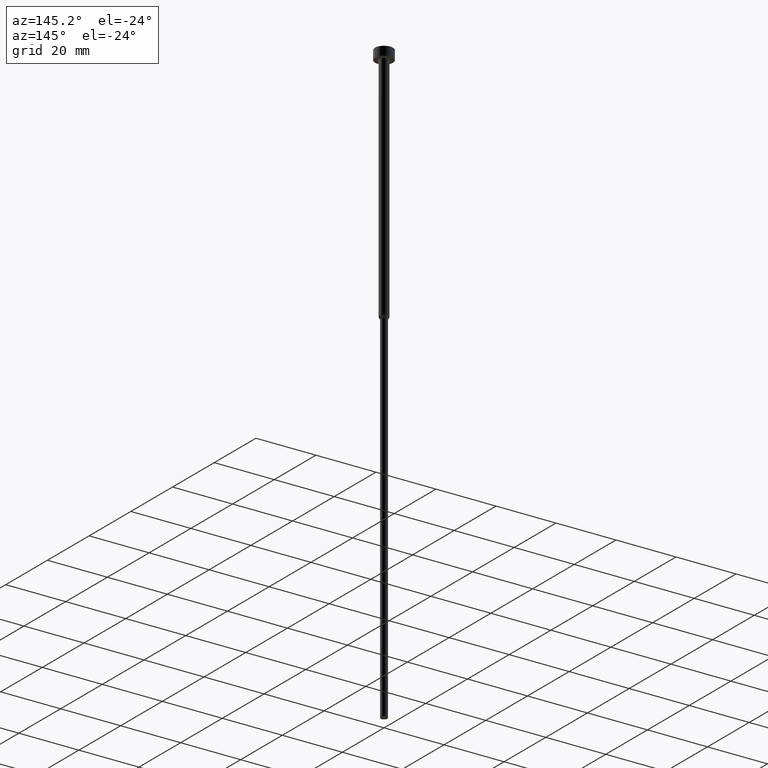
[diagram: clean part render]
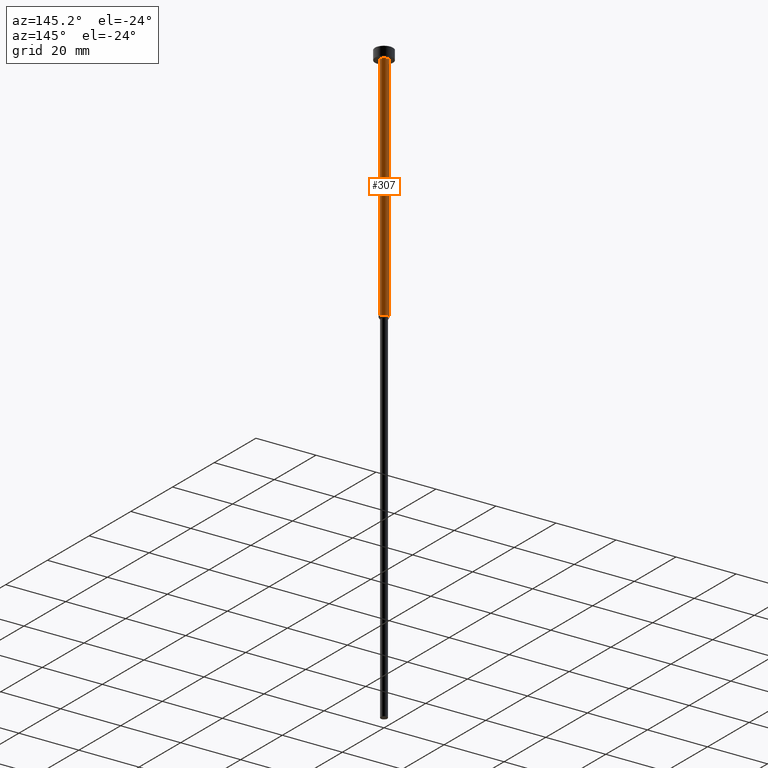
[diagram: same view with one face highlighted and labeled with its STEP entity id]
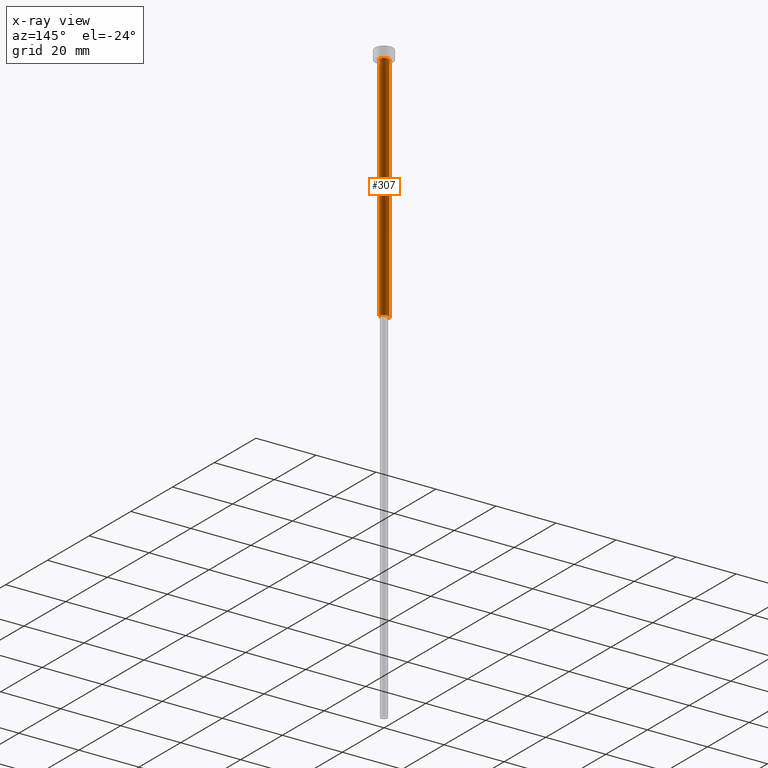
[diagram: x-ray of the same camera — body ghosted, the highlighted face saturated]
A machine part, auxiliary view. The second image highlights one B-rep face of the part: STEP entity #307.
The next image is the same camera in x-ray: the body ghosted, the highlighted face saturated — about 0% of this face is hidden behind the body in this view.
In plain terms, the highlighted cylindrical surface (edge-blend (fillet) strip) has radius 1.5 mm, axis along (-0, -0, 1).
Its self-contained STEP definition (entity closure, byte-faithful):
#6 = DIRECTION ( 'NONE',  ( -0.000000000000000000, -0.000000000000000000, 1.000000000000000000 ) ) ;
#14 = EDGE_LOOP ( 'NONE', ( #89, #152, #335, #333 ) ) ;
#30 = VECTOR ( 'NONE', #132, 1000.000000000000000 ) ;
#34 = CYLINDRICAL_SURFACE ( 'NONE', #286, 1.500000000000000000 ) ;
#36 = CARTESIAN_POINT ( 'NONE',  ( 0.000000000000000000, 0.000000000000000000, -80.00000000000000000 ) ) ;
#37 = FACE_OUTER_BOUND ( 'NONE', #14, .T. ) ;
#41 = LINE ( 'NONE', #341, #210 ) ;
#66 = AXIS2_PLACEMENT_3D ( 'NONE', #316, #68, #100 ) ;
#68 = DIRECTION ( 'NONE',  ( -0.000000000000000000, -0.000000000000000000, 1.000000000000000000 ) ) ;
#72 = EDGE_CURVE ( 'NONE', #294, #347, #165, .T. ) ;
#89 = ORIENTED_EDGE ( 'NONE', *, *, #325, .T. ) ;
#90 = CARTESIAN_POINT ( 'NONE',  ( -1.500000000000000000, 1.836970198721029934E-16, -3.000000000000000888 ) ) ;
#93 = AXIS2_PLACEMENT_3D ( 'NONE', #36, #6, #201 ) ;
#94 = EDGE_CURVE ( 'NONE', #222, #347, #199, .T. ) ;
#100 = DIRECTION ( 'NONE',  ( 1.000000000000000000, 0.000000000000000000, 0.000000000000000000 ) ) ;
#109 = CARTESIAN_POINT ( 'NONE',  ( 1.500000000000000000, 0.000000000000000000, -3.000000000000000888 ) ) ;
#113 = CARTESIAN_POINT ( 'NONE',  ( 1.500000000000000000, 0.000000000000000000, -80.00000000000000000 ) ) ;
#117 = EDGE_CURVE ( 'NONE', #150, #222, #41, .T. ) ;
#132 = DIRECTION ( 'NONE',  ( -0.000000000000000000, -0.000000000000000000, 1.000000000000000000 ) ) ;
#144 = DIRECTION ( 'NONE',  ( 1.000000000000000000, 0.000000000000000000, 0.000000000000000000 ) ) ;
#150 = VERTEX_POINT ( 'NONE', #113 ) ;
#152 = ORIENTED_EDGE ( 'NONE', *, *, #72, .T. ) ;
#165 = LINE ( 'NONE', #267, #30 ) ;
#199 = CIRCLE ( 'NONE', #66, 1.500000000000000000 ) ;
#201 = DIRECTION ( 'NONE',  ( 1.000000000000000000, 0.000000000000000000, 0.000000000000000000 ) ) ;
#210 = VECTOR ( 'NONE', #330, 1000.000000000000000 ) ;
#215 = CIRCLE ( 'NONE', #93, 1.500000000000000000 ) ;
#222 = VERTEX_POINT ( 'NONE', #109 ) ;
#255 = CARTESIAN_POINT ( 'NONE',  ( 0.000000000000000000, 0.000000000000000000, 0.000000000000000000 ) ) ;
#267 = CARTESIAN_POINT ( 'NONE',  ( -1.500000000000000000, 1.836970198721029934E-16, 0.000000000000000000 ) ) ;
#280 = CARTESIAN_POINT ( 'NONE',  ( -1.500000000000000000, 1.836970198721029934E-16, -80.00000000000000000 ) ) ;
#286 = AXIS2_PLACEMENT_3D ( 'NONE', #255, #305, #144 ) ;
#294 = VERTEX_POINT ( 'NONE', #280 ) ;
#305 = DIRECTION ( 'NONE',  ( -0.000000000000000000, -0.000000000000000000, 1.000000000000000000 ) ) ;
#307 = ADVANCED_FACE ( 'NONE', ( #37 ), #34, .T. ) ;
#316 = CARTESIAN_POINT ( 'NONE',  ( 0.000000000000000000, 0.000000000000000000, -3.000000000000000888 ) ) ;
#325 = EDGE_CURVE ( 'NONE', #150, #294, #215, .T. ) ;
#330 = DIRECTION ( 'NONE',  ( -0.000000000000000000, -0.000000000000000000, 1.000000000000000000 ) ) ;
#333 = ORIENTED_EDGE ( 'NONE', *, *, #117, .F. ) ;
#335 = ORIENTED_EDGE ( 'NONE', *, *, #94, .F. ) ;
#341 = CARTESIAN_POINT ( 'NONE',  ( 1.500000000000000000, 0.000000000000000000, 0.000000000000000000 ) ) ;
#347 = VERTEX_POINT ( 'NONE', #90 ) ;